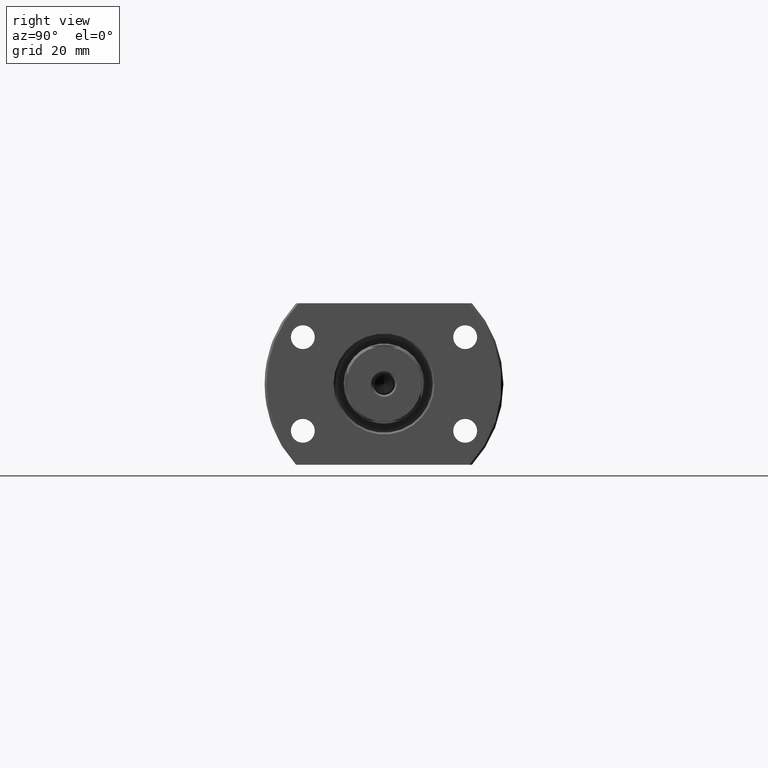
[diagram: clean part render]
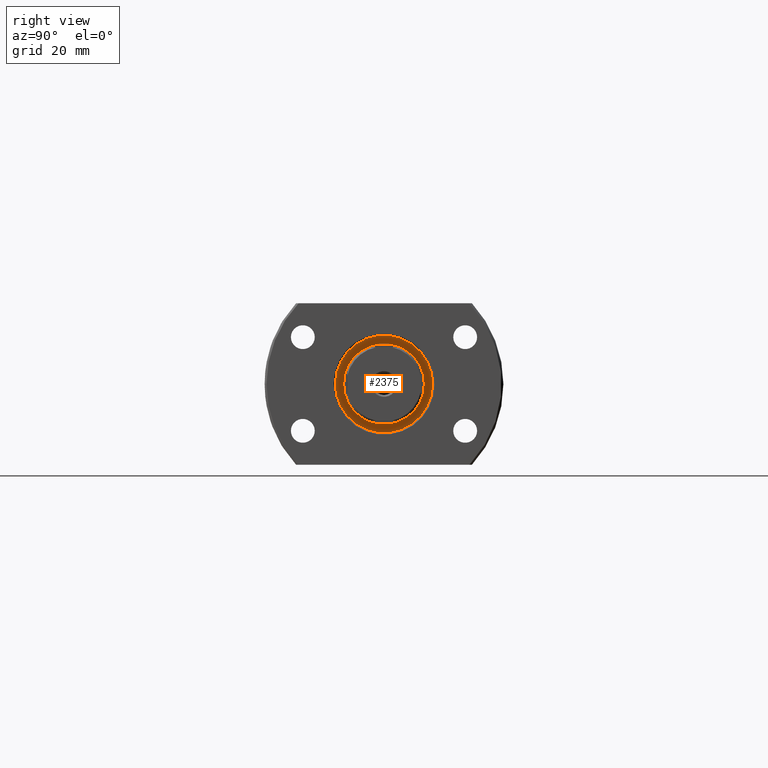
[diagram: same view with one face highlighted and labeled with its STEP entity id]
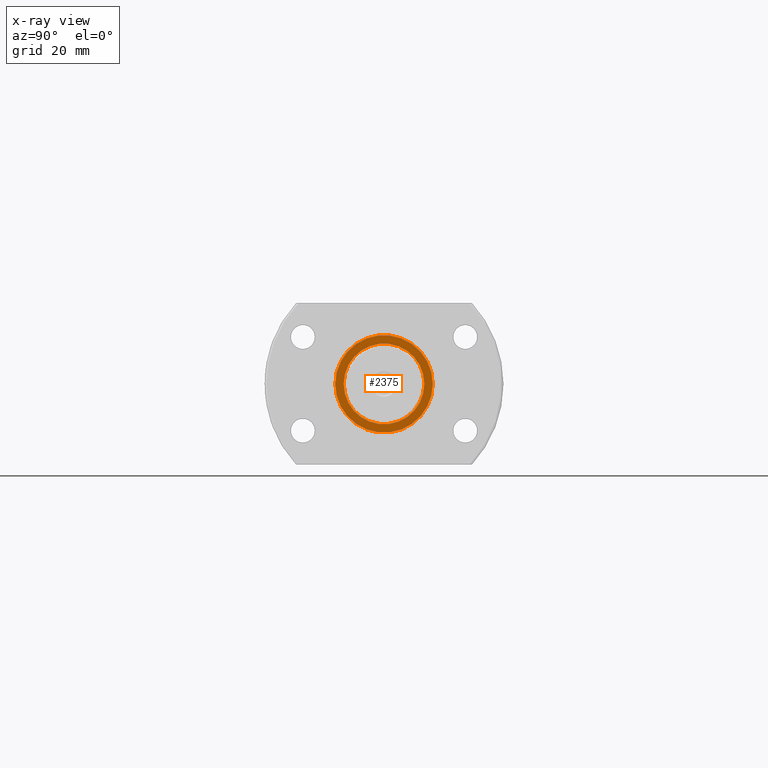
[diagram: x-ray of the same camera — body ghosted, the highlighted face saturated]
A machine part, right view. The second image highlights one B-rep face of the part: STEP entity #2375.
The next image is the same camera in x-ray: the body ghosted, the highlighted face saturated — about 0% of this face is hidden behind the body in this view.
In plain terms, the highlighted planar face has unit normal (1, -0, 0).
Its self-contained STEP definition (entity closure, byte-faithful):
#27 = ORIENTED_EDGE ( 'NONE', *, *, #2009, .T. ) ;
#32 = PLANE ( 'NONE',  #1944 ) ;
#74 = ORIENTED_EDGE ( 'NONE', *, *, #591, .T. ) ;
#88 = CARTESIAN_POINT ( 'NONE',  ( 29.50000000000031619, 10.99999999999914735, 0.000000000000000000 ) ) ;
#208 = DIRECTION ( 'NONE',  ( 1.000000000000000000, -2.886466111666351885E-14, 0.000000000000000000 ) ) ;
#217 = VERTEX_POINT ( 'NONE', #826 ) ;
#249 = ORIENTED_EDGE ( 'NONE', *, *, #2678, .F. ) ;
#308 = CARTESIAN_POINT ( 'NONE',  ( 29.50000000000000000, -8.515075029415737556E-13, 0.000000000000000000 ) ) ;
#522 = DIRECTION ( 'NONE',  ( 2.886466111666351885E-14, 1.000000000000000000, 0.000000000000000000 ) ) ;
#543 = AXIS2_PLACEMENT_3D ( 'NONE', #2594, #903, #857 ) ;
#547 = AXIS2_PLACEMENT_3D ( 'NONE', #308, #1293, #2056 ) ;
#559 = FACE_BOUND ( 'NONE', #1076, .T. ) ;
#591 = EDGE_CURVE ( 'NONE', #2625, #3210, #997, .T. ) ;
#826 = CARTESIAN_POINT ( 'NONE',  ( 29.49999999999968026, -11.00000000000085087, 1.347111479062138695E-15 ) ) ;
#857 = DIRECTION ( 'NONE',  ( 2.880295582753943605E-14, 1.000000000000000000, 0.000000000000000000 ) ) ;
#903 = DIRECTION ( 'NONE',  ( 1.000000000000000000, -2.886466111666351885E-14, 0.000000000000000000 ) ) ;
#997 = CIRCLE ( 'NONE', #1502, 13.25000000000000178 ) ;
#1032 = DIRECTION ( 'NONE',  ( 1.000000000000000000, -2.886466111666351885E-14, 0.000000000000000000 ) ) ;
#1076 = EDGE_LOOP ( 'NONE', ( #249, #2944 ) ) ;
#1123 = CIRCLE ( 'NONE', #2929, 11.00000000000000000 ) ;
#1266 = CIRCLE ( 'NONE', #543, 13.25000000000000178 ) ;
#1272 = CIRCLE ( 'NONE', #547, 11.00000000000000000 ) ;
#1293 = DIRECTION ( 'NONE',  ( 1.000000000000000000, -2.886466111666351885E-14, 0.000000000000000000 ) ) ;
#1502 = AXIS2_PLACEMENT_3D ( 'NONE', #3081, #2806, #2542 ) ;
#1944 = AXIS2_PLACEMENT_3D ( 'NONE', #3024, #1032, #522 ) ;
#2009 = EDGE_CURVE ( 'NONE', #3210, #2625, #1266, .T. ) ;
#2056 = DIRECTION ( 'NONE',  ( 2.901719268906659254E-14, 1.000000000000000000, 0.000000000000000000 ) ) ;
#2163 = EDGE_LOOP ( 'NONE', ( #74, #27 ) ) ;
#2217 = CARTESIAN_POINT ( 'NONE',  ( 29.49999999999961631, -13.25000000000085265, 1.622657008870243277E-15 ) ) ;
#2251 = DIRECTION ( 'NONE',  ( 2.901719268906659254E-14, 1.000000000000000000, 0.000000000000000000 ) ) ;
#2286 = FACE_OUTER_BOUND ( 'NONE', #2163, .T. ) ;
#2375 = ADVANCED_FACE ( 'NONE', ( #559, #2286 ), #32, .T. ) ;
#2542 = DIRECTION ( 'NONE',  ( 2.880295582753943605E-14, 1.000000000000000000, 0.000000000000000000 ) ) ;
#2594 = CARTESIAN_POINT ( 'NONE',  ( 29.50000000000000000, -8.515075029415738566E-13, 0.000000000000000000 ) ) ;
#2625 = VERTEX_POINT ( 'NONE', #2870 ) ;
#2678 = EDGE_CURVE ( 'NONE', #2892, #217, #1123, .T. ) ;
#2687 = CARTESIAN_POINT ( 'NONE',  ( 29.50000000000000000, -8.515075029415737556E-13, 0.000000000000000000 ) ) ;
#2806 = DIRECTION ( 'NONE',  ( 1.000000000000000000, -2.886466111666351885E-14, 0.000000000000000000 ) ) ;
#2863 = EDGE_CURVE ( 'NONE', #217, #2892, #1272, .T. ) ;
#2870 = CARTESIAN_POINT ( 'NONE',  ( 29.50000000000038014, 13.24999999999914913, 0.000000000000000000 ) ) ;
#2892 = VERTEX_POINT ( 'NONE', #88 ) ;
#2929 = AXIS2_PLACEMENT_3D ( 'NONE', #2687, #208, #2251 ) ;
#2944 = ORIENTED_EDGE ( 'NONE', *, *, #2863, .F. ) ;
#3024 = CARTESIAN_POINT ( 'NONE',  ( 29.50000000000000000, -8.515075029415738566E-13, 0.000000000000000000 ) ) ;
#3081 = CARTESIAN_POINT ( 'NONE',  ( 29.50000000000000000, -8.515075029415738566E-13, 0.000000000000000000 ) ) ;
#3210 = VERTEX_POINT ( 'NONE', #2217 ) ;